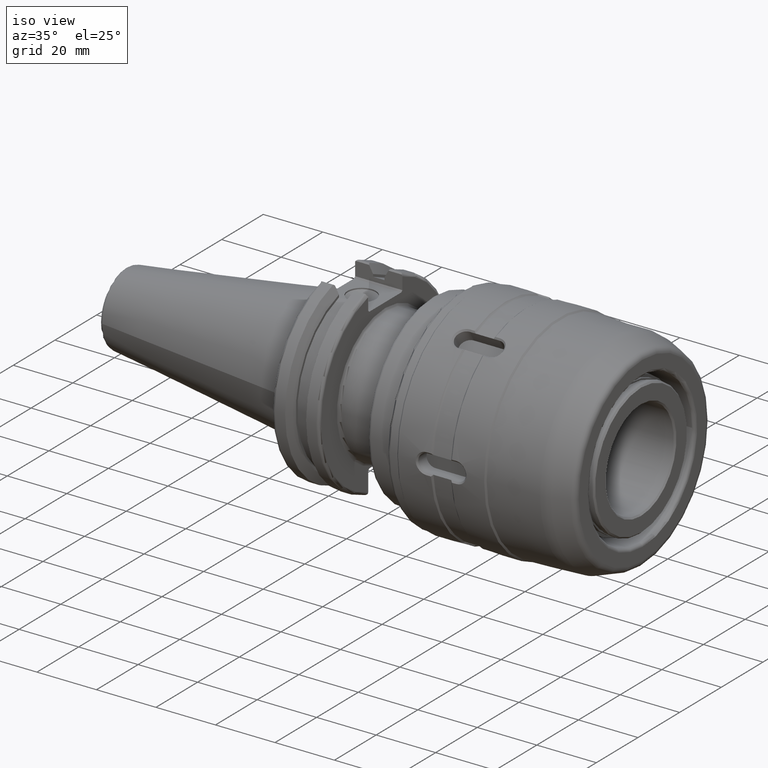
[diagram: clean part render]
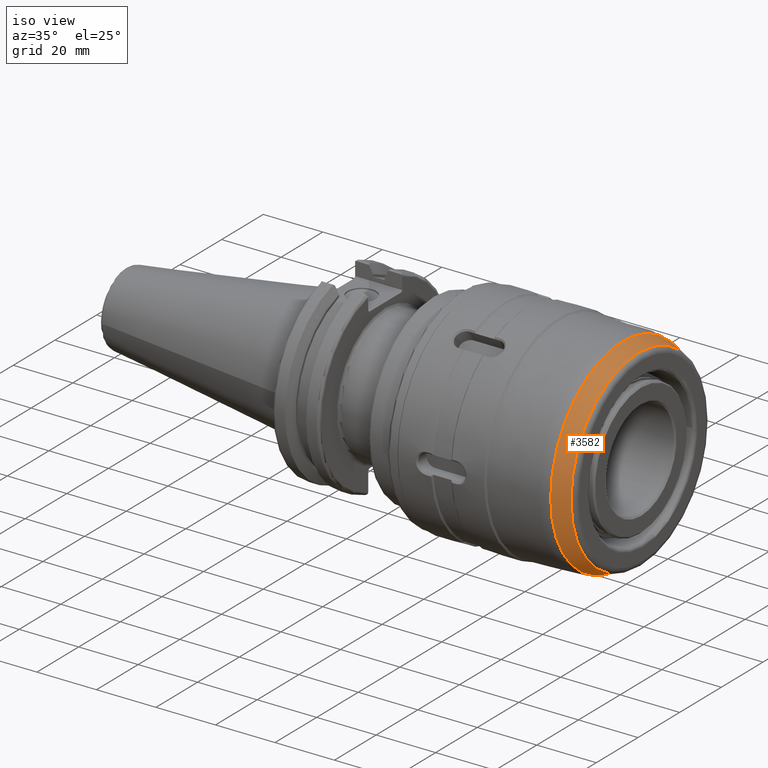
[diagram: same view with one face highlighted and labeled with its STEP entity id]
A machine part, iso view. The second image highlights one B-rep face of the part: STEP entity #3582.
In plain terms, the highlighted conical surface has half-angle 20 deg.
Its self-contained STEP definition (entity closure, byte-faithful):
#475=FACE_OUTER_BOUND('',#686,.T.);
#686=EDGE_LOOP('',(#3279,#3280,#3281,#3282,#3283,#3284,#3285,#3286));
#940=LINE('',#7339,#1181);
#1181=VECTOR('',#5007,33.5);
#1364=CIRCLE('',#4012,34.4425951913034);
#1365=CIRCLE('',#4013,34.4425951913034);
#1370=CIRCLE('',#4018,34.4425951913034);
#1371=CIRCLE('',#4020,32.4789701651524);
#1372=CIRCLE('',#4021,32.4789701651524);
#1373=CIRCLE('',#4022,32.4789701651524);
#1732=VERTEX_POINT('',#7320);
#1733=VERTEX_POINT('',#7321);
#1734=VERTEX_POINT('',#7323);
#1738=VERTEX_POINT('',#7334);
#1739=VERTEX_POINT('',#7335);
#1740=VERTEX_POINT('',#7337);
#2256=EDGE_CURVE('',#1732,#1733,#1364,.T.);
#2257=EDGE_CURVE('',#1733,#1734,#1365,.T.);
#2262=EDGE_CURVE('',#1734,#1732,#1370,.T.);
#2263=EDGE_CURVE('',#1738,#1739,#1371,.T.);
#2264=EDGE_CURVE('',#1740,#1738,#1372,.T.);
#2265=EDGE_CURVE('',#1740,#1733,#940,.T.);
#2266=EDGE_CURVE('',#1739,#1740,#1373,.T.);
#3279=ORIENTED_EDGE('',*,*,#2263,.F.);
#3280=ORIENTED_EDGE('',*,*,#2264,.F.);
#3281=ORIENTED_EDGE('',*,*,#2265,.T.);
#3282=ORIENTED_EDGE('',*,*,#2256,.F.);
#3283=ORIENTED_EDGE('',*,*,#2262,.F.);
#3284=ORIENTED_EDGE('',*,*,#2257,.F.);
#3285=ORIENTED_EDGE('',*,*,#2265,.F.);
#3286=ORIENTED_EDGE('',*,*,#2266,.F.);
#3400=CONICAL_SURFACE('',#4019,33.5,0.349065850398865);
#3582=ADVANCED_FACE('',(#475),#3400,.T.);
#4012=AXIS2_PLACEMENT_3D('',#7322,#4987,#4988);
#4013=AXIS2_PLACEMENT_3D('',#7324,#4989,#4990);
#4018=AXIS2_PLACEMENT_3D('',#7332,#4999,#5000);
#4019=AXIS2_PLACEMENT_3D('',#7333,#5001,#5002);
#4020=AXIS2_PLACEMENT_3D('',#7336,#5003,#5004);
#4021=AXIS2_PLACEMENT_3D('',#7338,#5005,#5006);
#4022=AXIS2_PLACEMENT_3D('',#7340,#5008,#5009);
#4987=DIRECTION('center_axis',(-1.,0.,0.));
#4988=DIRECTION('ref_axis',(0.,-1.,3.06161699786839E-17));
#4989=DIRECTION('center_axis',(-1.,0.,0.));
#4990=DIRECTION('ref_axis',(0.,-1.,3.06161699786839E-17));
#4999=DIRECTION('center_axis',(-1.,0.,0.));
#5000=DIRECTION('ref_axis',(0.,-1.,3.06161699786839E-17));
#5001=DIRECTION('center_axis',(-1.,0.,0.));
#5002=DIRECTION('ref_axis',(0.,1.,0.));
#5003=DIRECTION('center_axis',(1.,0.,0.));
#5004=DIRECTION('ref_axis',(0.,-1.,3.06161699786838E-17));
#5005=DIRECTION('center_axis',(1.,0.,0.));
#5006=DIRECTION('ref_axis',(0.,-1.,3.06161699786838E-17));
#5007=DIRECTION('',(-0.939692620785909,-0.342020143325667,-4.18853873767698E-17));
#5008=DIRECTION('center_axis',(1.,0.,0.));
#5009=DIRECTION('ref_axis',(0.,-1.,3.06161699786838E-17));
#7320=CARTESIAN_POINT('',(54.2890248670254,34.4425951913034,-1.05450034888394E-14));
#7321=CARTESIAN_POINT('',(54.2890248670254,-34.4425951913034,-4.21800139553578E-15));
#7322=CARTESIAN_POINT('Origin',(54.2890248670254,0.,-5.27250174441972E-15));
#7323=CARTESIAN_POINT('',(54.2890248670254,-4.21800139553578E-15,34.4425951913034));
#7324=CARTESIAN_POINT('Origin',(54.2890248670254,0.,-5.27250174441972E-15));
#7332=CARTESIAN_POINT('Origin',(54.2890248670254,0.,-5.27250174441972E-15));
#7333=CARTESIAN_POINT('Origin',(56.8787838708181,0.,0.));
#7334=CARTESIAN_POINT('',(59.6840402866513,32.4789701651524,-1.98876334261781E-15));
#7335=CARTESIAN_POINT('',(59.6840402866513,-3.97752668523563E-15,32.4789701651524));
#7336=CARTESIAN_POINT('Origin',(59.6840402866513,0.,-4.97190835654453E-15));
#7337=CARTESIAN_POINT('',(59.6840402866513,-32.4789701651524,-3.97752668523563E-15));
#7338=CARTESIAN_POINT('Origin',(59.6840402866513,0.,-4.97190835654453E-15));
#7339=CARTESIAN_POINT('',(56.8787838708181,-33.5,-4.10256677714363E-15));
#7340=CARTESIAN_POINT('Origin',(59.6840402866513,0.,-4.97190835654453E-15));